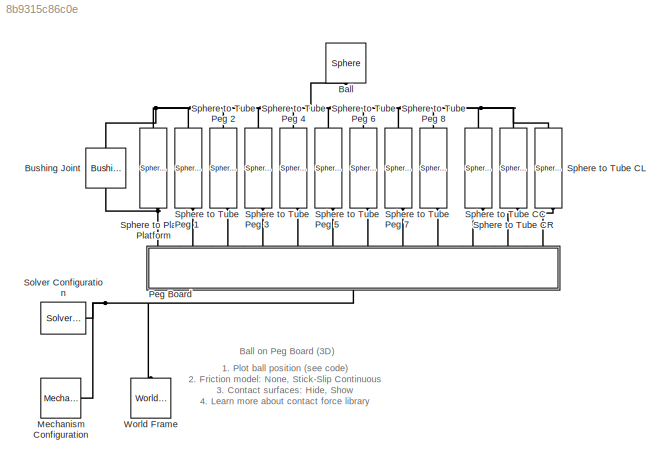
MODEL slx_8b9315c86c0e
KIND model
CONFIG AbsTol = auto
CONFIG EnableMultiTasking = on
CONFIG FixedStep = auto
CONFIG MaxStep = 0.01
CONFIG MinStep = auto
CONFIG PreLoadFcn = peg.rad = 0.2;\npeg.length = 1;\npeg_spacing = 1.3;\npeg.contact_k = 1e6;\npeg.contact_b = 1e4;\nball_pegs.rad = 0.5;\nplatform.length=10;\nplatform.width=10;\nplatform.thickness=0.005;\nplatform.angle = 30;\n\n\n\n
CONFIG RelTol = 1e-4
CONFIG SampleTimeConstraint = Unconstrained
CONFIG Solver = ode23t
CONFIG SolverName = ode23t
CONFIG StartFcn = tic;
CONFIG StartTime = 0.0
CONFIG StopFcn = Elapsed_Sim_Time = toc;\ndisp(['Elapsed Sim Time = ' num2str(Elapsed_Sim_Time)]);\n
CONFIG StopTime = 20
BLOCK [Reference] Ball  REF=Parts_Lib/Sphere
  Ports = [0, 0, 0, 0, 0, 1]
  SourceBlock = Parts_Lib/Sphere
  SourceType = Sphere with Markings
  Tag = CustomStyle
BLOCK [Reference] Bushing Joint  REF=sm_lib/Joints/Bushing Joint
  Ports = [0, 0, 0, 0, 0, 1, 1]
  SourceBlock = sm_lib/Joints/Bushing Joint
  SourceProductBaseCode = MS
  SourceProductName = Simscape Multibody
  SourceType = Bushing Joint
BLOCK [Reference] Mechanism Configuration  REF=sm_lib/Utilities/Mechanism
Configuration
  Ports = [0, 0, 0, 0, 0, 0, 1]
  SourceBlock = sm_lib/Utilities/Mechanism\nConfiguration
  SourceProductBaseCode = MS
  SourceProductName = Simscape Multibody
  SourceType = Mechanism\nConfiguration
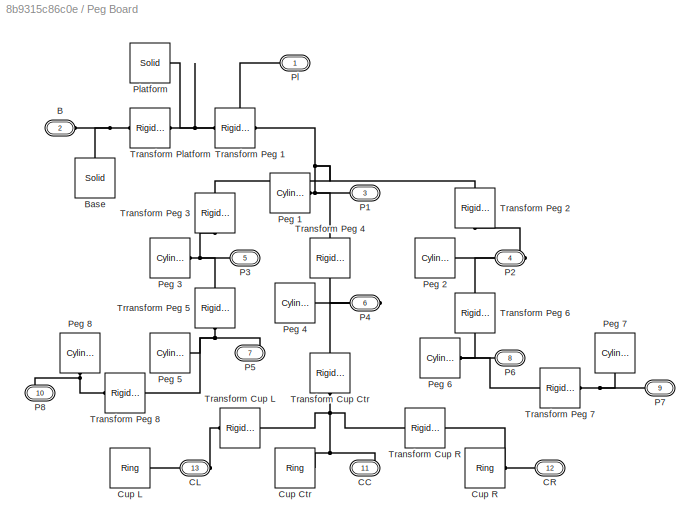
BLOCK [SubSystem] Peg Board
  Ports = [0, 0, 0, 0, 0, 1, 12]
  RequestExecContextInheritance = off
  Tag = CustomStylePublishSubsystem
BLOCK [PMIOPort] Peg Board/B
  Port = 2
  Side = Left
BLOCK [Reference] Peg Board/Base  REF=sm_lib/Body Elements/Solid
  Ports = [0, 0, 0, 0, 0, 0, 1]
  SourceBlock = sm_lib/Body Elements/Solid
  SourceProductBaseCode = MS
  SourceProductName = Simscape Multibody
  SourceType = Solid
BLOCK [PMIOPort] Peg Board/CC
  Port = 11
  Side = Right
BLOCK [PMIOPort] Peg Board/CL
  Port = 13
  Side = Right
BLOCK [PMIOPort] Peg Board/CR
  Port = 12
  Side = Right
BLOCK [Reference] Peg Board/Cup Ctr  REF=Parts_Lib/Ring
  Ports = [0, 0, 0, 0, 0, 1]
  SourceBlock = Parts_Lib/Ring
  SourceType = Solid Cylinder with Markings
  Tag = CustomStyle
BLOCK [Reference] Peg Board/Cup L  REF=Parts_Lib/Ring
  Ports = [0, 0, 0, 0, 0, 1]
  SourceBlock = Parts_Lib/Ring
  SourceType = Solid Cylinder with Markings
  Tag = CustomStyle
BLOCK [Reference] Peg Board/Cup R  REF=Parts_Lib/Ring
  Ports = [0, 0, 0, 0, 0, 1]
  SourceBlock = Parts_Lib/Ring
  SourceType = Solid Cylinder with Markings
  Tag = CustomStyle
BLOCK [PMIOPort] Peg Board/P1
  Port = 3
  Side = Right
BLOCK [PMIOPort] Peg Board/P2
  Port = 4
  Side = Right
BLOCK [PMIOPort] Peg Board/P3
  Port = 5
  Side = Right
BLOCK [PMIOPort] Peg Board/P4
  Port = 6
  Side = Right
BLOCK [PMIOPort] Peg Board/P5
  Port = 7
  Side = Right
BLOCK [PMIOPort] Peg Board/P6
  Port = 8
  Side = Right
BLOCK [PMIOPort] Peg Board/P7
  Port = 9
  Side = Right
BLOCK [PMIOPort] Peg Board/P8
  Port = 10
  Side = Right
BLOCK [Reference] Peg Board/Peg 1  REF=Parts_Lib/Cylinder
  Ports = [0, 0, 0, 0, 0, 1]
  SourceBlock = Parts_Lib/Cylinder
  SourceType = Solid Cylinder with Markings
  Tag = CustomStyle
BLOCK [Reference] Peg Board/Peg 2  REF=Parts_Lib/Cylinder
  Ports = [0, 0, 0, 0, 0, 1]
  SourceBlock = Parts_Lib/Cylinder
  SourceType = Solid Cylinder with Markings
  Tag = CustomStyle
BLOCK [Reference] Peg Board/Peg 3  REF=Parts_Lib/Cylinder
  Ports = [0, 0, 0, 0, 0, 1]
  SourceBlock = Parts_Lib/Cylinder
  SourceType = Solid Cylinder with Markings
  Tag = CustomStyle
BLOCK [Reference] Peg Board/Peg 4  REF=Parts_Lib/Cylinder
  Ports = [0, 0, 0, 0, 0, 1]
  SourceBlock = Parts_Lib/Cylinder
  SourceType = Solid Cylinder with Markings
  Tag = CustomStyle
BLOCK [Reference] Peg Board/Peg 5  REF=Parts_Lib/Cylinder
  Ports = [0, 0, 0, 0, 0, 1]
  SourceBlock = Parts_Lib/Cylinder
  SourceType = Solid Cylinder with Markings
  Tag = CustomStyle
BLOCK [Reference] Peg Board/Peg 6  REF=Parts_Lib/Cylinder
  Ports = [0, 0, 0, 0, 0, 1]
  SourceBlock = Parts_Lib/Cylinder
  SourceType = Solid Cylinder with Markings
  Tag = CustomStyle
BLOCK [Reference] Peg Board/Peg 7  REF=Parts_Lib/Cylinder
  Ports = [0, 0, 0, 0, 0, 1]
  SourceBlock = Parts_Lib/Cylinder
  SourceType = Solid Cylinder with Markings
  Tag = CustomStyle
BLOCK [Reference] Peg Board/Peg 8  REF=Parts_Lib/Cylinder
  Ports = [0, 0, 0, 0, 0, 1]
  SourceBlock = Parts_Lib/Cylinder
  SourceType = Solid Cylinder with Markings
  Tag = CustomStyle
BLOCK [PMIOPort] Peg Board/Pl
  Side = Right
BLOCK [Reference] Peg Board/Platform  REF=sm_lib/Body Elements/Solid
  Ports = [0, 0, 0, 0, 0, 0, 1]
  SourceBlock = sm_lib/Body Elements/Solid
  SourceProductBaseCode = MS
  SourceProductName = Simscape Multibody
  SourceType = Solid
BLOCK [Reference] Peg Board/Transform Cup Ctr  REF=sm_lib/Frames and
Transforms/Rigid
Transform
  Ports = [0, 0, 0, 0, 0, 1, 1]
  SourceBlock = sm_lib/Frames and\nTransforms/Rigid\nTransform
  SourceProductBaseCode = MS
  SourceProductName = Simscape Multibody
  SourceType = Rigid\nTransform
BLOCK [Reference] Peg Board/Transform Cup L  REF=sm_lib/Frames and
Transforms/Rigid
Transform
  Ports = [0, 0, 0, 0, 0, 1, 1]
  SourceBlock = sm_lib/Frames and\nTransforms/Rigid\nTransform
  SourceProductBaseCode = MS
  SourceProductName = Simscape Multibody
  SourceType = Rigid\nTransform
BLOCK [Reference] Peg Board/Transform Cup R  REF=sm_lib/Frames and
Transforms/Rigid
Transform
  Ports = [0, 0, 0, 0, 0, 1, 1]
  SourceBlock = sm_lib/Frames and\nTransforms/Rigid\nTransform
  SourceProductBaseCode = MS
  SourceProductName = Simscape Multibody
  SourceType = Rigid\nTransform
BLOCK [Reference] Peg Board/Transform Peg 1  REF=sm_lib/Frames and
Transforms/Rigid
Transform
  Ports = [0, 0, 0, 0, 0, 1, 1]
  SourceBlock = sm_lib/Frames and\nTransforms/Rigid\nTransform
  SourceProductBaseCode = MS
  SourceProductName = Simscape Multibody
  SourceType = Rigid\nTransform
BLOCK [Reference] Peg Board/Transform Peg 2  REF=sm_lib/Frames and
Transforms/Rigid
Transform
  Ports = [0, 0, 0, 0, 0, 1, 1]
  SourceBlock = sm_lib/Frames and\nTransforms/Rigid\nTransform
  SourceProductBaseCode = MS
  SourceProductName = Simscape Multibody
  SourceType = Rigid\nTransform
BLOCK [Reference] Peg Board/Transform Peg 3  REF=sm_lib/Frames and
Transforms/Rigid
Transform
  Ports = [0, 0, 0, 0, 0, 1, 1]
  SourceBlock = sm_lib/Frames and\nTransforms/Rigid\nTransform
  SourceProductBaseCode = MS
  SourceProductName = Simscape Multibody
  SourceType = Rigid\nTransform
BLOCK [Reference] Peg Board/Transform Peg 4  REF=sm_lib/Frames and
Transforms/Rigid
Transform
  Ports = [0, 0, 0, 0, 0, 1, 1]
  SourceBlock = sm_lib/Frames and\nTransforms/Rigid\nTransform
  SourceProductBaseCode = MS
  SourceProductName = Simscape Multibody
  SourceType = Rigid\nTransform
BLOCK [Reference] Peg Board/Transform Peg 6  REF=sm_lib/Frames and
Transforms/Rigid
Transform
  Ports = [0, 0, 0, 0, 0, 1, 1]
  SourceBlock = sm_lib/Frames and\nTransforms/Rigid\nTransform
  SourceProductBaseCode = MS
  SourceProductName = Simscape Multibody
  SourceType = Rigid\nTransform
BLOCK [Reference] Peg Board/Transform Peg 7  REF=sm_lib/Frames and
Transforms/Rigid
Transform
  Ports = [0, 0, 0, 0, 0, 1, 1]
  SourceBlock = sm_lib/Frames and\nTransforms/Rigid\nTransform
  SourceProductBaseCode = MS
  SourceProductName = Simscape Multibody
  SourceType = Rigid\nTransform
BLOCK [Reference] Peg Board/Transform Peg 8  REF=sm_lib/Frames and
Transforms/Rigid
Transform
  Ports = [0, 0, 0, 0, 0, 1, 1]
  SourceBlock = sm_lib/Frames and\nTransforms/Rigid\nTransform
  SourceProductBaseCode = MS
  SourceProductName = Simscape Multibody
  SourceType = Rigid\nTransform
BLOCK [Reference] Peg Board/Transform Platform  REF=sm_lib/Frames and
Transforms/Rigid
Transform
  Ports = [0, 0, 0, 0, 0, 1, 1]
  SourceBlock = sm_lib/Frames and\nTransforms/Rigid\nTransform
  SourceProductBaseCode = MS
  SourceProductName = Simscape Multibody
  SourceType = Rigid\nTransform
BLOCK [Reference] Peg Board/Trransform Peg 5  REF=sm_lib/Frames and
Transforms/Rigid
Transform
  Ports = [0, 0, 0, 0, 0, 1, 1]
  SourceBlock = sm_lib/Frames and\nTransforms/Rigid\nTransform
  SourceProductBaseCode = MS
  SourceProductName = Simscape Multibody
  SourceType = Rigid\nTransform
BLOCK [Reference] Solver Configuration  REF=nesl_utility/Solver
Configuration
  Ports = [0, 0, 0, 0, 0, 0, 1]
  SourceBlock = nesl_utility/Solver\nConfiguration
  SourceProductBaseCode = SS
  SourceProductName = Simscape
  SourceType = Solver\nConfiguration
BLOCK [Reference] Sphere to Plane Platform  REF=Contact_Forces_Lib/3D/Sphere to Plane Force
  Ports = [0, 1, 0, 0, 0, 1, 1]
  SourceBlock = Contact_Forces_Lib/3D/Sphere to Plane Force
  SourceProductName = Simscape Multibody Contact Forces Library
  SourceType = Sphere to Plane Force
BLOCK [Reference] Sphere to Tube CC  REF=Contact_Forces_Lib/3D/Sphere to Tube Force
  Ports = [0, 1, 0, 0, 0, 1, 1]
  SourceBlock = Contact_Forces_Lib/3D/Sphere to Tube Force
  SourceProductName = Simscape Multibody Contact Forces Library
  SourceType = Sphere to Tube Force
BLOCK [Reference] Sphere to Tube CL  REF=Contact_Forces_Lib/3D/Sphere to Tube Force
  Ports = [0, 1, 0, 0, 0, 1, 1]
  SourceBlock = Contact_Forces_Lib/3D/Sphere to Tube Force
  SourceProductName = Simscape Multibody Contact Forces Library
  SourceType = Sphere to Tube Force
BLOCK [Reference] Sphere to Tube CR  REF=Contact_Forces_Lib/3D/Sphere to Tube Force
  Ports = [0, 1, 0, 0, 0, 1, 1]
  SourceBlock = Contact_Forces_Lib/3D/Sphere to Tube Force
  SourceProductName = Simscape Multibody Contact Forces Library
  SourceType = Sphere to Tube Force
BLOCK [Reference] Sphere to Tube Peg 1  REF=Contact_Forces_Lib/3D/Sphere to Tube Force
  Ports = [0, 1, 0, 0, 0, 1, 1]
  SourceBlock = Contact_Forces_Lib/3D/Sphere to Tube Force
  SourceProductName = Simscape Multibody Contact Forces Library
  SourceType = Sphere to Tube Force
BLOCK [Reference] Sphere to Tube Peg 2  REF=Contact_Forces_Lib/3D/Sphere to Tube Force
  Ports = [0, 1, 0, 0, 0, 1, 1]
  SourceBlock = Contact_Forces_Lib/3D/Sphere to Tube Force
  SourceProductName = Simscape Multibody Contact Forces Library
  SourceType = Sphere to Tube Force
BLOCK [Reference] Sphere to Tube Peg 3  REF=Contact_Forces_Lib/3D/Sphere to Tube Force
  Ports = [0, 1, 0, 0, 0, 1, 1]
  SourceBlock = Contact_Forces_Lib/3D/Sphere to Tube Force
  SourceProductName = Simscape Multibody Contact Forces Library
  SourceType = Sphere to Tube Force
BLOCK [Reference] Sphere to Tube Peg 4  REF=Contact_Forces_Lib/3D/Sphere to Tube Force
  Ports = [0, 1, 0, 0, 0, 1, 1]
  SourceBlock = Contact_Forces_Lib/3D/Sphere to Tube Force
  SourceProductName = Simscape Multibody Contact Forces Library
  SourceType = Sphere to Tube Force
BLOCK [Reference] Sphere to Tube Peg 5  REF=Contact_Forces_Lib/3D/Sphere to Tube Force
  Ports = [0, 1, 0, 0, 0, 1, 1]
  SourceBlock = Contact_Forces_Lib/3D/Sphere to Tube Force
  SourceProductName = Simscape Multibody Contact Forces Library
  SourceType = Sphere to Tube Force
BLOCK [Reference] Sphere to Tube Peg 6  REF=Contact_Forces_Lib/3D/Sphere to Tube Force
  Ports = [0, 1, 0, 0, 0, 1, 1]
  SourceBlock = Contact_Forces_Lib/3D/Sphere to Tube Force
  SourceProductName = Simscape Multibody Contact Forces Library
  SourceType = Sphere to Tube Force
BLOCK [Reference] Sphere to Tube Peg 7  REF=Contact_Forces_Lib/3D/Sphere to Tube Force
  Ports = [0, 1, 0, 0, 0, 1, 1]
  SourceBlock = Contact_Forces_Lib/3D/Sphere to Tube Force
  SourceProductName = Simscape Multibody Contact Forces Library
  SourceType = Sphere to Tube Force
BLOCK [Reference] Sphere to Tube Peg 8  REF=Contact_Forces_Lib/3D/Sphere to Tube Force
  Ports = [0, 1, 0, 0, 0, 1, 1]
  SourceBlock = Contact_Forces_Lib/3D/Sphere to Tube Force
  SourceProductName = Simscape Multibody Contact Forces Library
  SourceType = Sphere to Tube Force
BLOCK [Reference] World Frame  REF=sm_lib/Frames and
Transforms/World Frame
  Ports = [0, 0, 0, 0, 0, 0, 1]
  SourceBlock = sm_lib/Frames and\nTransforms/World Frame
  SourceProductBaseCode = MS
  SourceProductName = Simscape Multibody
  SourceType = World Frame
ANNOTATION (root): 1. Plot ball position ( see code ) 2. Friction model: None , Stick-Slip Continuous 3. Contact surfaces: Hide , Show 4. Learn more about contact force library
ANNOTATION (root): Ball on Peg Board (3D)
PNET net1: Ball:LConn1 -- Bushing Joint:RConn1 -- Sphere to Plane Platform:LConn1 -- Sphere to Tube CC:LConn1 -- Sphere to Tube CL:LConn1 -- Sphere to Tube CR:LConn1 -- Sphere to Tube Peg 1:LConn1 -- Sphere to Tube Peg 2:LConn1 -- Sphere to Tube Peg 3:LConn1 -- Sphere to Tube Peg 4:LConn1 -- Sphere to Tube Peg 5:LConn1 -- Sphere to Tube Peg 6:LConn1 -- Sphere to Tube Peg 7:LConn1 -- Sphere to Tube Peg 8:LConn1
PNET net2: Bushing Joint:LConn1 -- Peg Board:RConn1 -- Sphere to Plane Platform:RConn1
PNET net3: Mechanism Configuration:RConn1 -- Peg Board:LConn1 -- Solver Configuration:RConn1 -- World Frame:RConn1
PNET net4: Peg Board/B:RConn1 -- Peg Board/Base:RConn1 -- Peg Board/Transform Platform:LConn1
PNET net5: Peg Board/CC:RConn1 -- Peg Board/Cup Ctr:LConn1 -- Peg Board/Transform Cup Ctr:RConn1 -- Peg Board/Transform Cup L:LConn1 -- Peg Board/Transform Cup R:LConn1
PNET net6: Peg Board/CL:RConn1 -- Peg Board/Cup L:LConn1 -- Peg Board/Transform Cup L:RConn1
PNET net7: Peg Board/CR:RConn1 -- Peg Board/Cup R:LConn1 -- Peg Board/Transform Cup R:RConn1
PNET net8: Peg Board/P1:RConn1 -- Peg Board/Peg 1:LConn1 -- Peg Board/Transform Peg 1:RConn1 -- Peg Board/Transform Peg 2:LConn1 -- Peg Board/Transform Peg 3:LConn1 -- Peg Board/Transform Peg 4:LConn1
PNET net9: Peg Board/P2:RConn1 -- Peg Board/Peg 2:LConn1 -- Peg Board/Transform Peg 2:RConn1 -- Peg Board/Transform Peg 6:LConn1
PNET net10: Peg Board/P3:RConn1 -- Peg Board/Peg 3:LConn1 -- Peg Board/Transform Peg 3:RConn1 -- Peg Board/Trransform Peg 5:LConn1
PNET net11: Peg Board/P4:RConn1 -- Peg Board/Peg 4:LConn1 -- Peg Board/Transform Cup Ctr:LConn1 -- Peg Board/Transform Peg 4:RConn1
PNET net12: Peg Board/P5:RConn1 -- Peg Board/Peg 5:LConn1 -- Peg Board/Transform Peg 8:LConn1 -- Peg Board/Trransform Peg 5:RConn1
PNET net13: Peg Board/P6:RConn1 -- Peg Board/Peg 6:LConn1 -- Peg Board/Transform Peg 6:RConn1 -- Peg Board/Transform Peg 7:LConn1
PNET net14: Peg Board/P7:RConn1 -- Peg Board/Peg 7:LConn1 -- Peg Board/Transform Peg 7:RConn1
PNET net15: Peg Board/P8:RConn1 -- Peg Board/Peg 8:LConn1 -- Peg Board/Transform Peg 8:RConn1
PNET net16: Peg Board/Pl:RConn1 -- Peg Board/Platform:RConn1 -- Peg Board/Transform Peg 1:LConn1 -- Peg Board/Transform Platform:RConn1
PLINE Peg Board:RConn10 -- Sphere to Tube CC:RConn1
PLINE Peg Board:RConn11 -- Sphere to Tube CR:RConn1
PLINE Peg Board:RConn12 -- Sphere to Tube CL:RConn1
PLINE Peg Board:RConn2 -- Sphere to Tube Peg 1:RConn1
PLINE Peg Board:RConn3 -- Sphere to Tube Peg 2:RConn1
PLINE Peg Board:RConn4 -- Sphere to Tube Peg 3:RConn1
PLINE Peg Board:RConn5 -- Sphere to Tube Peg 4:RConn1
PLINE Peg Board:RConn6 -- Sphere to Tube Peg 5:RConn1
PLINE Peg Board:RConn7 -- Sphere to Tube Peg 6:RConn1
PLINE Peg Board:RConn8 -- Sphere to Tube Peg 7:RConn1
PLINE Peg Board:RConn9 -- Sphere to Tube Peg 8:RConn1
note: PNET lines group multi-terminal physical nets as a canonical sorted terminal list (undirected conserving connections); 2-terminal nets keep the pairwise PLINE form
